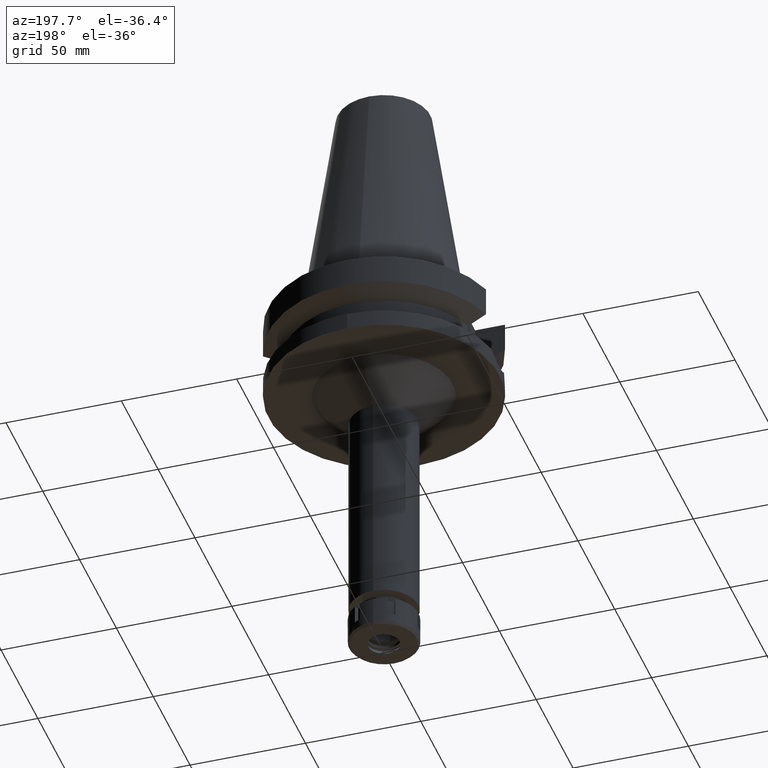
[diagram: clean part render]
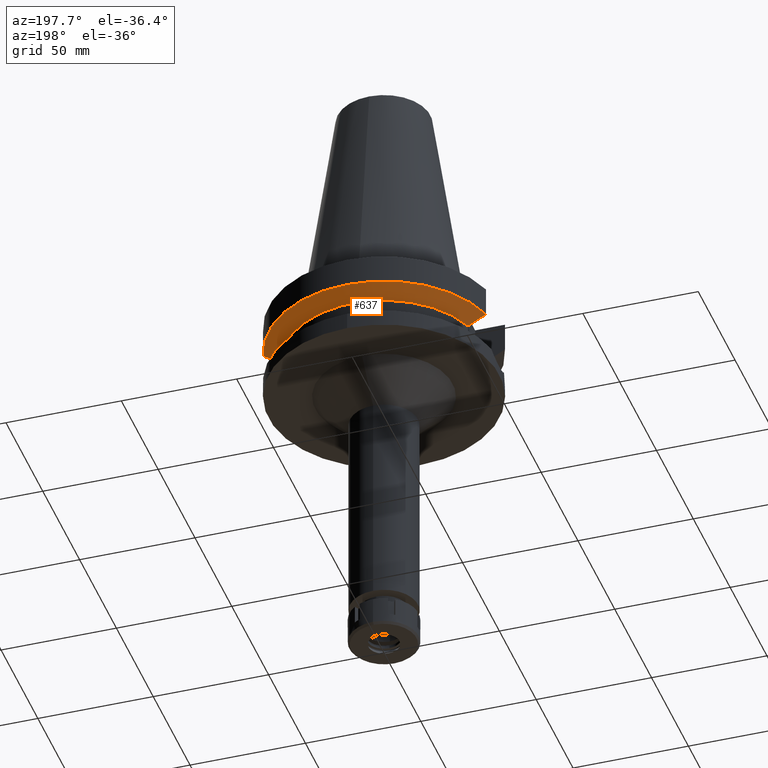
[diagram: same view with one face highlighted and labeled with its STEP entity id]
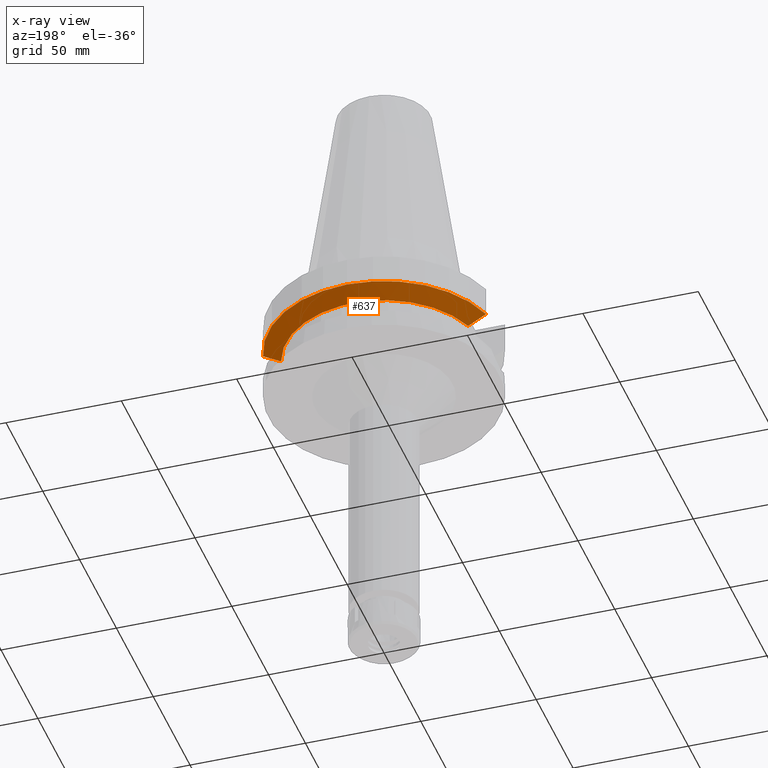
[diagram: x-ray of the same camera — body ghosted, the highlighted face saturated]
A machine part, auxiliary view. The second image highlights one B-rep face of the part: STEP entity #637.
The next image is the same camera in x-ray: the body ghosted, the highlighted face saturated — about 0% of this face is hidden behind the body in this view.
In plain terms, the highlighted conical surface has half-angle 60 deg.
Its self-contained STEP definition (entity closure, byte-faithful):
#36 = CARTESIAN_POINT ( 'NONE',  ( -40.51083188481999997, 12.84999999999999964, -19.99281925464999787 ) ) ;
#44 = AXIS2_PLACEMENT_3D ( 'NONE', #1709, #1147, #3461 ) ;
#152 = EDGE_CURVE ( 'NONE', #1811, #1868, #3142, .T. ) ;
#195 = CARTESIAN_POINT ( 'NONE',  ( 40.51083297203000200, 12.84999657246999938, -19.99284555851999912 ) ) ;
#311 = DIRECTION ( 'NONE',  ( 0.0000000000000000000, 0.0000000000000000000, 1.000000000000000000 ) ) ;
#362 = ORIENTED_EDGE ( 'NONE', *, *, #3349, .F. ) ;
#409 = CARTESIAN_POINT ( 'NONE',  ( 0.0000000000000000000, 1.006319759053999930E-14, -17.82775574519000017 ) ) ;
#425 = EDGE_LOOP ( 'NONE', ( #362, #1030, #3643, #644 ) ) ;
#449 = VERTEX_POINT ( 'NONE', #915 ) ;
#542 = EDGE_CURVE ( 'NONE', #1811, #1644, #697, .T. ) ;
#637 = ADVANCED_FACE ( 'NONE', ( #3605 ), #1351, .T. ) ;
#644 = ORIENTED_EDGE ( 'NONE', *, *, #542, .T. ) ;
#697 = B_SPLINE_CURVE_WITH_KNOTS ( 'NONE', 3,
 ( #36, #1432, #3171, #1177 ),
 .UNSPECIFIED., .F., .F.,
 ( 4, 4 ),
 ( 0.0000000000000000000, 1.000000000000000000 ),
 .UNSPECIFIED. ) ;
#879 = AXIS2_PLACEMENT_3D ( 'NONE', #3504, #311, #1481 ) ;
#915 = CARTESIAN_POINT ( 'NONE',  ( 48.32056912815000516, 12.85000385725999905, -15.66265768273000170 ) ) ;
#1030 = ORIENTED_EDGE ( 'NONE', *, *, #1873, .T. ) ;
#1040 = DIRECTION ( 'NONE',  ( 0.0000000000000000000, 1.000000000000000000, 0.0000000000000000000 ) ) ;
#1064 = CARTESIAN_POINT ( 'NONE',  ( 42.90862489466591256, 12.84999313797018594, -18.67324780284967645 ) ) ;
#1147 = DIRECTION ( 'NONE',  ( 0.0000000000000000000, 0.0000000000000000000, -1.000000000000000000 ) ) ;
#1177 = CARTESIAN_POINT ( 'NONE',  ( -48.32056912780999625, 12.85000385852000093, -15.66265767138999898 ) ) ;
#1351 = CONICAL_SURFACE ( 'NONE', #2242, 46.25000000000000000, 1.047197551196400456 ) ;
#1432 = CARTESIAN_POINT ( 'NONE',  ( -42.90863232185251519, 12.84999314245379587, -18.67324368411542324 ) ) ;
#1436 = CARTESIAN_POINT ( 'NONE',  ( -48.32056912780999625, 12.85000385852000093, -15.66265767138999898 ) ) ;
#1481 = DIRECTION ( 'NONE',  ( 0.0000000000000000000, 1.000000000000000000, 0.0000000000000000000 ) ) ;
#1526 = CIRCLE ( 'NONE', #879, 50.00000000000000000 ) ;
#1644 = VERTEX_POINT ( 'NONE', #1436 ) ;
#1672 = CARTESIAN_POINT ( 'NONE',  ( 40.51083297203000200, 12.84999657246999938, -19.99284555851999912 ) ) ;
#1709 = CARTESIAN_POINT ( 'NONE',  ( 0.0000000000000000000, 1.006319759053999930E-14, -19.99281925464999787 ) ) ;
#1811 = VERTEX_POINT ( 'NONE', #3291 ) ;
#1868 = VERTEX_POINT ( 'NONE', #195 ) ;
#1873 = EDGE_CURVE ( 'NONE', #449, #1868, #3324, .T. ) ;
#2242 = AXIS2_PLACEMENT_3D ( 'NONE', #409, #3569, #1040 ) ;
#3142 = CIRCLE ( 'NONE', #44, 42.50000000000002132 ) ;
#3171 = CARTESIAN_POINT ( 'NONE',  ( -45.51180301983914944, 12.85000771239541351, -17.22986482407244324 ) ) ;
#3291 = CARTESIAN_POINT ( 'NONE',  ( -40.51083188481999997, 12.84999999999999964, -19.99281925464999787 ) ) ;
#3310 = CARTESIAN_POINT ( 'NONE',  ( 48.32056912815000516, 12.85000385725999905, -15.66265768273000170 ) ) ;
#3324 = B_SPLINE_CURVE_WITH_KNOTS ( 'NONE', 3,
 ( #3310, #3331, #1064, #1672 ),
 .UNSPECIFIED., .F., .F.,
 ( 4, 4 ),
 ( 0.0000000000000000000, 1.000000000000000000 ),
 .UNSPECIFIED. ) ;
#3331 = CARTESIAN_POINT ( 'NONE',  ( 45.51179901593025079, 12.85000770987397090, -17.22986705846993161 ) ) ;
#3349 = EDGE_CURVE ( 'NONE', #449, #1644, #1526, .T. ) ;
#3461 = DIRECTION ( 'NONE',  ( -0.9531960443486575674, 0.3023529411764863672, 0.0000000000000000000 ) ) ;
#3504 = CARTESIAN_POINT ( 'NONE',  ( 0.0000000000000000000, 1.006319759053999930E-14, -15.66269223573000069 ) ) ;
#3569 = DIRECTION ( 'NONE',  ( 0.0000000000000000000, 0.0000000000000000000, 1.000000000000000000 ) ) ;
#3605 = FACE_OUTER_BOUND ( 'NONE', #425, .T. ) ;
#3643 = ORIENTED_EDGE ( 'NONE', *, *, #152, .F. ) ;